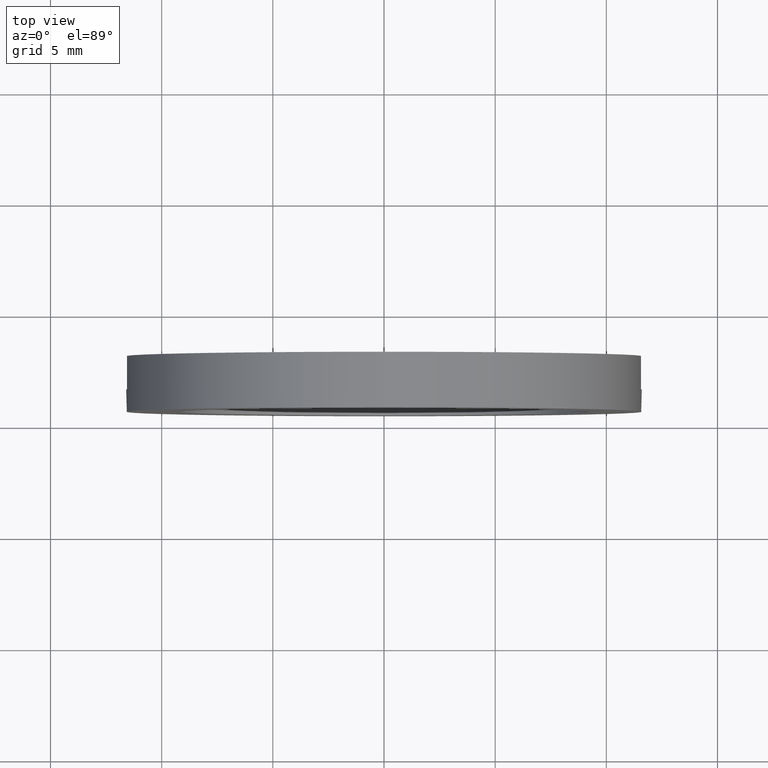
[diagram: clean part render]
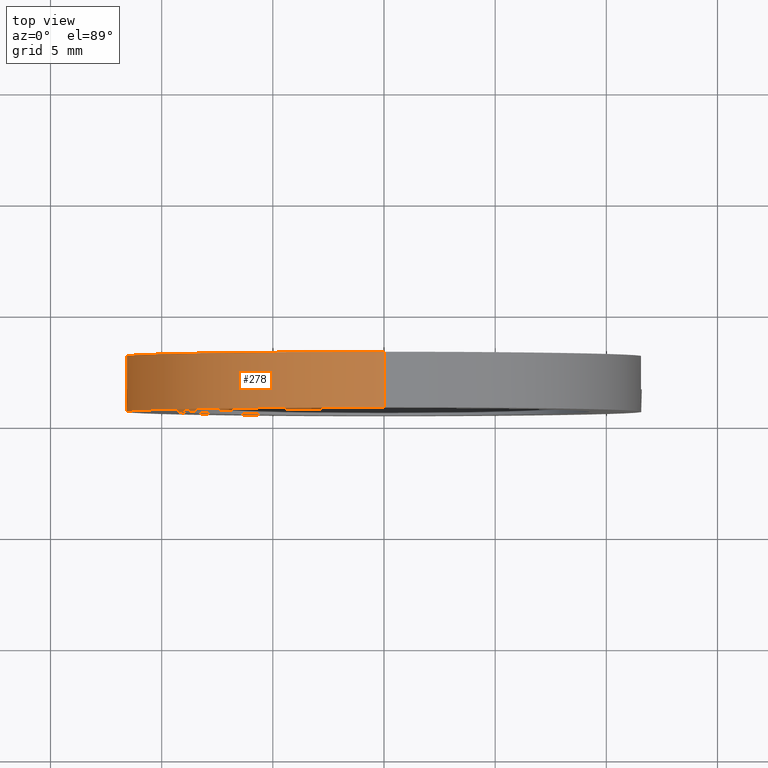
[diagram: same view with one face highlighted and labeled with its STEP entity id]
A machine part, top view. The second image highlights one B-rep face of the part: STEP entity #278.
In plain terms, the highlighted cylindrical surface (partial cylindrical patch) has radius 11.6 mm, axis along (-0, 1, -0).
Its self-contained STEP definition (entity closure, byte-faithful):
#28 = EDGE_CURVE ( 'NONE', #547, #362, #290, .T. ) ;
#43 = LINE ( 'NONE', #310, #268 ) ;
#60 = CARTESIAN_POINT ( 'NONE',  ( 0.0000000000000000000, -1.964249787179434000, 0.0000000000000000000 ) ) ;
#70 = CARTESIAN_POINT ( 'NONE',  ( 0.0000000000000000000, -4.464249787179428900, 11.60000000000000700 ) ) ;
#79 = CARTESIAN_POINT ( 'NONE',  ( -11.55681617055494400, -1.964249787179430900, 1.000000000000000000 ) ) ;
#83 = ORIENTED_EDGE ( 'NONE', *, *, #567, .T. ) ;
#85 = CYLINDRICAL_SURFACE ( 'NONE', #548, 11.60000000000000700 ) ;
#97 = ORIENTED_EDGE ( 'NONE', *, *, #127, .F. ) ;
#98 = LINE ( 'NONE', #576, #215 ) ;
#102 = DIRECTION ( 'NONE',  ( 0.0000000000000000000, 0.0000000000000000000, 1.000000000000000000 ) ) ;
#104 = ORIENTED_EDGE ( 'NONE', *, *, #370, .T. ) ;
#110 = DIRECTION ( 'NONE',  ( -0.0000000000000000000, 1.000000000000000000, -0.0000000000000000000 ) ) ;
#117 = CIRCLE ( 'NONE', #572, 11.60000000000000700 ) ;
#124 = ORIENTED_EDGE ( 'NONE', *, *, #208, .T. ) ;
#127 = EDGE_CURVE ( 'NONE', #168, #375, #98, .T. ) ;
#149 = CARTESIAN_POINT ( 'NONE',  ( -11.55681617055494400, -1.964249787179430900, -1.000000000000000000 ) ) ;
#168 = VERTEX_POINT ( 'NONE', #521 ) ;
#183 = ORIENTED_EDGE ( 'NONE', *, *, #195, .F. ) ;
#185 = LINE ( 'NONE', #287, #443 ) ;
#186 = ORIENTED_EDGE ( 'NONE', *, *, #467, .F. ) ;
#191 = CIRCLE ( 'NONE', #252, 11.60000000000000700 ) ;
#195 = EDGE_CURVE ( 'NONE', #375, #254, #191, .T. ) ;
#208 = EDGE_CURVE ( 'NONE', #168, #305, #117, .T. ) ;
#210 = CARTESIAN_POINT ( 'NONE',  ( -11.55681617055493900, -3.464249787179428400, -0.9999999999999995600 ) ) ;
#215 = VECTOR ( 'NONE', #569, 1000.000000000000000 ) ;
#223 = EDGE_CURVE ( 'NONE', #305, #362, #384, .T. ) ;
#236 = CARTESIAN_POINT ( 'NONE',  ( 0.0000000000000000000, -1.964249787179434000, 0.0000000000000000000 ) ) ;
#246 = DIRECTION ( 'NONE',  ( 0.0000000000000000000, 0.0000000000000000000, 1.000000000000000000 ) ) ;
#249 = DIRECTION ( 'NONE',  ( 0.0000000000000000000, 0.0000000000000000000, 1.000000000000000000 ) ) ;
#252 = AXIS2_PLACEMENT_3D ( 'NONE', #60, #476, #246 ) ;
#254 = VERTEX_POINT ( 'NONE', #149 ) ;
#268 = VECTOR ( 'NONE', #429, 1000.000000000000000 ) ;
#276 = DIRECTION ( 'NONE',  ( 0.0000000000000000000, 0.0000000000000000000, 1.000000000000000000 ) ) ;
#277 = VECTOR ( 'NONE', #517, 1000.000000000000000 ) ;
#278 = ADVANCED_FACE ( 'NONE', ( #332 ), #85, .T. ) ;
#287 = CARTESIAN_POINT ( 'NONE',  ( -11.55681617055494000, 56.26084262701361600, 1.000000000000000000 ) ) ;
#290 = CIRCLE ( 'NONE', #411, 11.60000000000000700 ) ;
#305 = VERTEX_POINT ( 'NONE', #70 ) ;
#310 = CARTESIAN_POINT ( 'NONE',  ( -11.55681617055494000, 56.26084262701361600, -1.000000000000000000 ) ) ;
#326 = DIRECTION ( 'NONE',  ( -0.0000000000000000000, 1.000000000000000000, -0.0000000000000000000 ) ) ;
#332 = FACE_OUTER_BOUND ( 'NONE', #487, .T. ) ;
#333 = CARTESIAN_POINT ( 'NONE',  ( 1.420590287010930300E-015, -1.964249787179434000, -11.60000000000000700 ) ) ;
#343 = CARTESIAN_POINT ( 'NONE',  ( 0.0000000000000000000, 56.26084262701361600, 0.0000000000000000000 ) ) ;
#358 = VERTEX_POINT ( 'NONE', #508 ) ;
#362 = VERTEX_POINT ( 'NONE', #472 ) ;
#370 = EDGE_CURVE ( 'NONE', #547, #358, #185, .T. ) ;
#375 = VERTEX_POINT ( 'NONE', #333 ) ;
#378 = CARTESIAN_POINT ( 'NONE',  ( 0.0000000000000000000, -4.464249787179428900, 0.0000000000000000000 ) ) ;
#384 = LINE ( 'NONE', #509, #277 ) ;
#385 = DIRECTION ( 'NONE',  ( -0.0000000000000000000, 1.000000000000000000, -0.0000000000000000000 ) ) ;
#396 = CARTESIAN_POINT ( 'NONE',  ( 0.0000000000000000000, -3.464249787179428400, 0.0000000000000000000 ) ) ;
#411 = AXIS2_PLACEMENT_3D ( 'NONE', #236, #326, #276 ) ;
#429 = DIRECTION ( 'NONE',  ( -0.0000000000000000000, 1.000000000000000000, -0.0000000000000000000 ) ) ;
#435 = DIRECTION ( 'NONE',  ( 0.0000000000000000000, 0.0000000000000000000, 1.000000000000000000 ) ) ;
#443 = VECTOR ( 'NONE', #563, 1000.000000000000000 ) ;
#467 = EDGE_CURVE ( 'NONE', #566, #358, #494, .T. ) ;
#472 = CARTESIAN_POINT ( 'NONE',  ( 0.0000000000000000000, -1.964249787179434000, 11.60000000000000700 ) ) ;
#473 = ORIENTED_EDGE ( 'NONE', *, *, #28, .F. ) ;
#476 = DIRECTION ( 'NONE',  ( -0.0000000000000000000, 1.000000000000000000, -0.0000000000000000000 ) ) ;
#487 = EDGE_LOOP ( 'NONE', ( #97, #124, #498, #473, #104, #186, #83, #183 ) ) ;
#488 = DIRECTION ( 'NONE',  ( 0.0000000000000000000, 1.000000000000000000, 0.0000000000000000000 ) ) ;
#493 = AXIS2_PLACEMENT_3D ( 'NONE', #396, #488, #435 ) ;
#494 = CIRCLE ( 'NONE', #493, 11.60000000000000700 ) ;
#498 = ORIENTED_EDGE ( 'NONE', *, *, #223, .T. ) ;
#508 = CARTESIAN_POINT ( 'NONE',  ( -11.55681617055493900, -3.464249787179428400, 0.9999999999999995600 ) ) ;
#509 = CARTESIAN_POINT ( 'NONE',  ( 0.0000000000000000000, 56.26084262701361600, 11.60000000000000700 ) ) ;
#517 = DIRECTION ( 'NONE',  ( -0.0000000000000000000, 1.000000000000000000, -0.0000000000000000000 ) ) ;
#521 = CARTESIAN_POINT ( 'NONE',  ( 1.420590287010930300E-015, -4.464249787179428900, -11.60000000000000700 ) ) ;
#547 = VERTEX_POINT ( 'NONE', #79 ) ;
#548 = AXIS2_PLACEMENT_3D ( 'NONE', #343, #110, #249 ) ;
#563 = DIRECTION ( 'NONE',  ( 0.0000000000000000000, -1.000000000000000000, 0.0000000000000000000 ) ) ;
#566 = VERTEX_POINT ( 'NONE', #210 ) ;
#567 = EDGE_CURVE ( 'NONE', #566, #254, #43, .T. ) ;
#569 = DIRECTION ( 'NONE',  ( -0.0000000000000000000, 1.000000000000000000, -0.0000000000000000000 ) ) ;
#572 = AXIS2_PLACEMENT_3D ( 'NONE', #378, #385, #102 ) ;
#576 = CARTESIAN_POINT ( 'NONE',  ( 1.420590287010930300E-015, 56.26084262701361600, -11.60000000000000700 ) ) ;